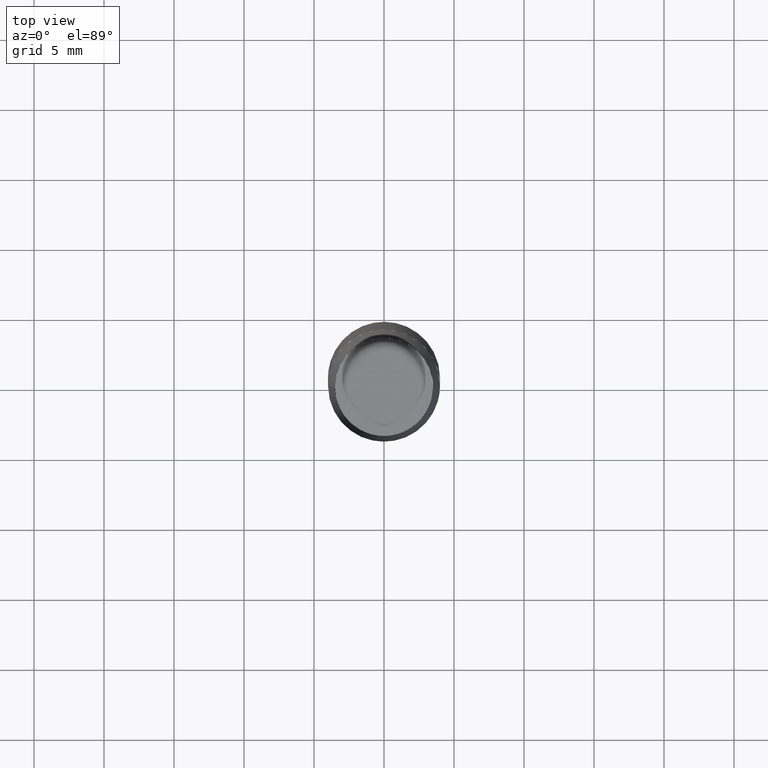
[diagram: clean part render]
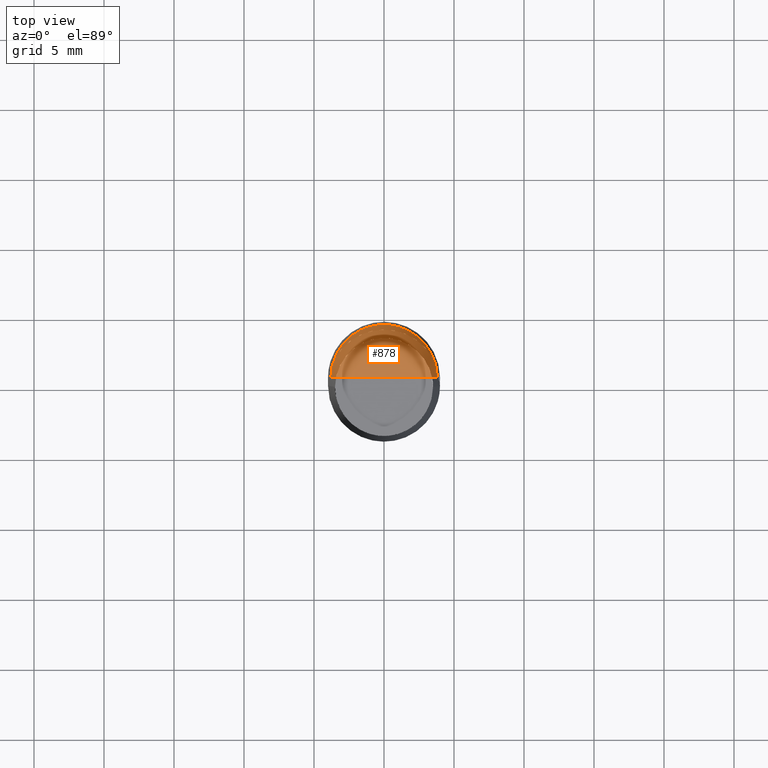
[diagram: same view with one face highlighted and labeled with its STEP entity id]
A machine part, top view. The second image highlights one B-rep face of the part: STEP entity #878.
In plain terms, the highlighted face is a freeform B-spline surface patch.
Its self-contained STEP definition (entity closure, byte-faithful):
#635=CARTESIAN_POINT('',(3.8,0.0,32.0));
#636=CARTESIAN_POINT('',(3.8,3.8,32.0));
#637=CARTESIAN_POINT('',(0.0,3.8,32.0));
#638=CARTESIAN_POINT('',(-3.8,3.8,32.0));
#639=CARTESIAN_POINT('',(-3.8,0.0,32.0));
#640=CARTESIAN_POINT('',(0.0,0.0,32.0));
#863=(
BOUNDED_SURFACE()
B_SPLINE_SURFACE(1,2,(
(#635,#636,#637,#638,#639),
(#640,#640,#640,#640,#640)
), .UNSPECIFIED.,.F.,.F.,.F.)
B_SPLINE_SURFACE_WITH_KNOTS((2,2),(3,2,3),(
0.0,1.0),(
0.0,0.5,1.0), .UNSPECIFIED.)
GEOMETRIC_REPRESENTATION_ITEM()
RATIONAL_B_SPLINE_SURFACE(((1.0,0.707106781187,1.0,0.707106781187,1.0),
(1.0,0.707106781187,1.0,0.707106781187,1.0)
))
REPRESENTATION_ITEM('')
SURFACE()
);
#864=(
BOUNDED_CURVE()
B_SPLINE_CURVE(2,(#639,#638,#637,#636,#635),.UNSPECIFIED.,.F.,.F.)
B_SPLINE_CURVE_WITH_KNOTS((3,2,3),
(0.0,0.5,1.0),.UNSPECIFIED.)
CURVE()
GEOMETRIC_REPRESENTATION_ITEM()
RATIONAL_B_SPLINE_CURVE((1.0,0.707106781187,1.0,0.707106781187,1.0))
REPRESENTATION_ITEM('')
);
#865=(
BOUNDED_CURVE()
B_SPLINE_CURVE(1,(#635,#640),.UNSPECIFIED.,.F.,.F.)
B_SPLINE_CURVE_WITH_KNOTS((2,2),
(0.0,1.0),.UNSPECIFIED.)
CURVE()
GEOMETRIC_REPRESENTATION_ITEM()
RATIONAL_B_SPLINE_CURVE((1.0,1.0))
REPRESENTATION_ITEM('')
);
#866=(
BOUNDED_CURVE()
B_SPLINE_CURVE(1,(#640,#639),.UNSPECIFIED.,.F.,.F.)
B_SPLINE_CURVE_WITH_KNOTS((2,2),
(0.0,1.0),.UNSPECIFIED.)
CURVE()
GEOMETRIC_REPRESENTATION_ITEM()
RATIONAL_B_SPLINE_CURVE((1.0,1.0))
REPRESENTATION_ITEM('')
);
#867=VERTEX_POINT('',#635);
#868=VERTEX_POINT('',#639);
#869=VERTEX_POINT('',#640);
#870=EDGE_CURVE('',#868,#867,#864,.T.);
#871=EDGE_CURVE('',#867,#869,#865,.T.);
#872=EDGE_CURVE('',#869,#868,#866,.T.);
#873=ORIENTED_EDGE('',*,*,#870,.T.);
#874=ORIENTED_EDGE('',*,*,#871,.T.);
#875=ORIENTED_EDGE('',*,*,#872,.T.);
#876=EDGE_LOOP('',(#873,#874,#875));
#877=FACE_OUTER_BOUND('',#876,.T.);
#878=ADVANCED_FACE('',(#877),#863,.T.);